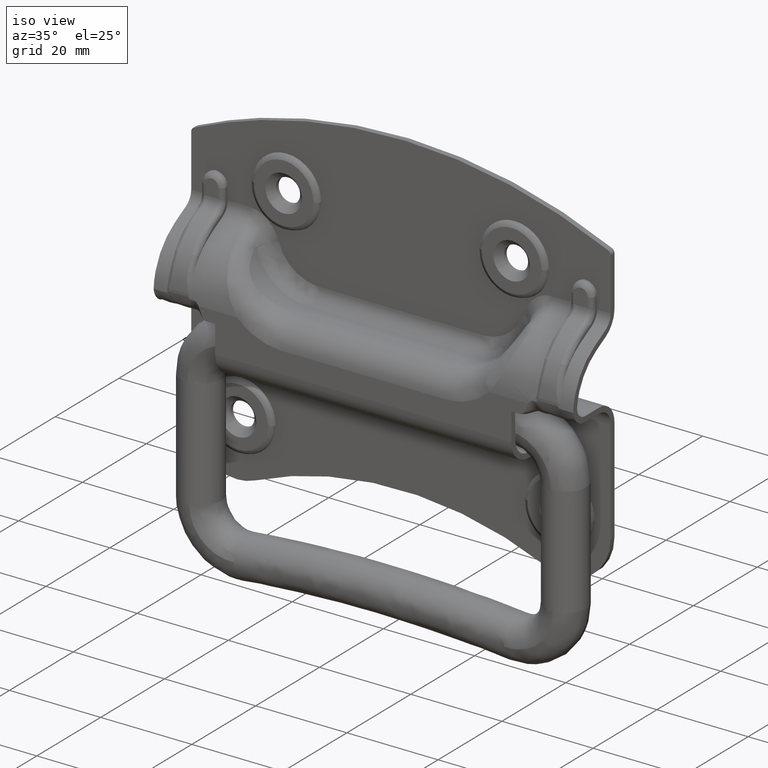
[diagram: clean part render]
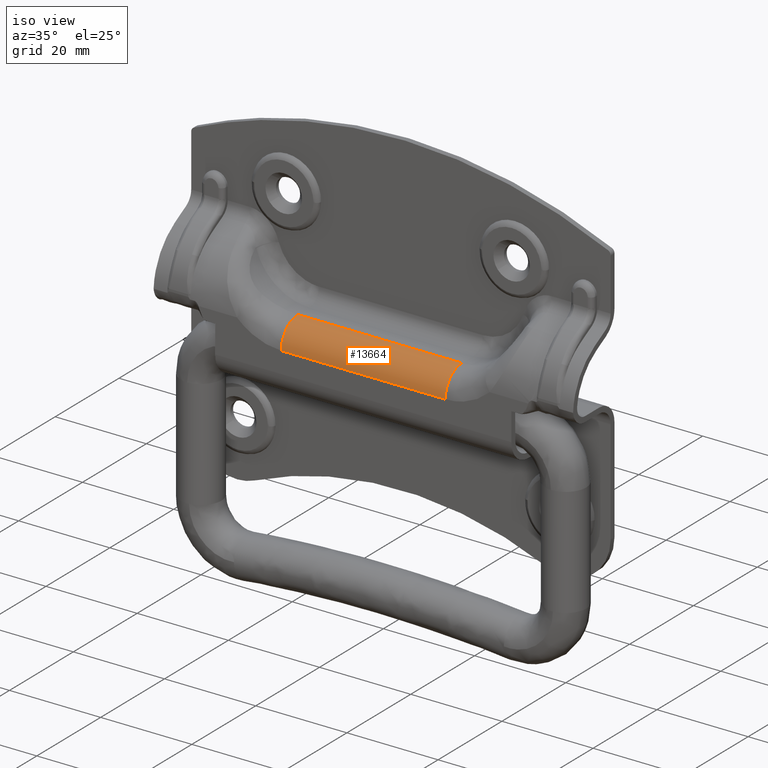
[diagram: same view with one face highlighted and labeled with its STEP entity id]
A machine part, iso view. The second image highlights one B-rep face of the part: STEP entity #13664.
In plain terms, the highlighted face is a freeform B-spline surface patch.
Its self-contained STEP definition (entity closure, byte-faithful):
#13571=CARTESIAN_POINT('',(-17.989417224256801,-6.300000000000100,3.300000000000000));
#13572=VERTEX_POINT('',#13571);
#13573=CARTESIAN_POINT('',(-17.989417224256801,-1.100000000000100,8.500000000000000));
#13574=VERTEX_POINT('',#13573);
#13575=CARTESIAN_POINT('',(-17.989417224256801,-6.300000000000100,3.300000000000000));
#13576=CARTESIAN_POINT('',(-17.989417224256830,-6.300023540345435,3.619061969754394));
#13577=CARTESIAN_POINT('',(-17.989417224256840,-6.235239076651224,4.321011775950144));
#13578=CARTESIAN_POINT('',(-17.989417224256819,-5.930873434834051,5.324544689789228));
#13579=CARTESIAN_POINT('',(-17.989417224256851,-5.446415882473841,6.204609059333916));
#13580=CARTESIAN_POINT('',(-17.989417224256940,-4.855240287108133,6.934039152631713));
#13581=CARTESIAN_POINT('',(-17.989417224256769,-4.115166369369407,7.580440151058687));
#13582=CARTESIAN_POINT('',(-17.989417224256989,-3.202742769484706,8.097344332654963));
#13583=CARTESIAN_POINT('',(-17.989417224256758,-2.163531626683575,8.426473193596587));
#13584=CARTESIAN_POINT('',(-17.989417224256901,-1.461605822204056,8.500052943462537));
#13585=CARTESIAN_POINT('',(-17.989417224256801,-1.100000000000100,8.500000000000000));
#13586=B_SPLINE_CURVE_WITH_KNOTS('',3,(#13575,#13576,#13577,#13578,#13579,#13580,#13581,#13582,#13583,#13584,#13585),.UNSPECIFIED.,.F.,.U.,(4,1,1,1,1,1,1,1,4),(0.000000207816578,0.957191866349964,2.105866928865705,3.126922538987524,3.956501181576887,4.913664046117958,6.062342043411299,7.083397471581851,8.168208867072346),.UNSPECIFIED.);
#13587=EDGE_CURVE('',#13572,#13574,#13586,.T.);
#13621=CARTESIAN_POINT('',(18.888813437020609,-0.963879868799158,8.498218089872896));
#13622=CARTESIAN_POINT('',(-18.911372990788792,-0.963879868799158,8.498218089872896));
#13623=CARTESIAN_POINT('',(18.888813437020616,-6.689921499122808,8.648159766906453));
#13624=CARTESIAN_POINT('',(-18.911372990788784,-6.689921499122808,8.648159766906453));
#13625=CARTESIAN_POINT('',(18.888813437020605,-6.287127258695690,2.934335123238267));
#13626=CARTESIAN_POINT('',(-18.911372990788788,-6.287127258695690,2.934335123238267));
#13634=(BOUNDED_SURFACE()B_SPLINE_SURFACE(1,2,((#13621,#13623,#13625),(#13622,#13624,#13626)),.UNSPECIFIED.,.F.,.F.,.U.)B_SPLINE_SURFACE_WITH_KNOTS((2,2),(3,3),(0.0,37.800186427809393),(0.0,9.209940769200813),.UNSPECIFIED.)GEOMETRIC_REPRESENTATION_ITEM()RATIONAL_B_SPLINE_SURFACE(((1.0,0.670944202479118,0.996392689507086),(1.0,0.670944202479118,0.996392689507086)))REPRESENTATION_ITEM('')SURFACE());
#13635=CARTESIAN_POINT('',(17.989344396501650,-6.300000000000100,3.300000000000000));
#13636=VERTEX_POINT('',#13635);
#13637=CARTESIAN_POINT('',(17.989344396501650,-1.100000000000100,8.500000000000000));
#13638=VERTEX_POINT('',#13637);
#13639=CARTESIAN_POINT('',(17.989344396501650,-6.300000000000100,3.300000000000000));
#13640=CARTESIAN_POINT('',(17.989344396501529,-6.300638664396213,3.959527872536128));
#13641=CARTESIAN_POINT('',(17.989344396501291,-6.136051664448085,4.809931257341503));
#13642=CARTESIAN_POINT('',(17.989344396501249,-5.632338346774924,5.891431088840783));
#13643=CARTESIAN_POINT('',(17.989344396501071,-5.038889149615672,6.780286262512811));
#13644=CARTESIAN_POINT('',(17.989344396501149,-4.092742256742405,7.627087166207413));
#13645=CARTESIAN_POINT('',(17.989344396501359,-2.716299238259469,8.319871094517428));
#13646=CARTESIAN_POINT('',(17.989344396501480,-1.716949851630260,8.500524657195586));
#13647=CARTESIAN_POINT('',(17.989344396501650,-1.100000000000100,8.500000000000000));
#13648=B_SPLINE_CURVE_WITH_KNOTS('',3,(#13639,#13640,#13641,#13642,#13643,#13644,#13645,#13646,#13647),.UNSPECIFIED.,.F.,.U.,(4,1,1,1,1,1,4),(0.000000194732488,1.978233307178002,2.552571677155958,3.573631660767587,5.168905328782504,6.317589273986898,8.168192150968745),.UNSPECIFIED.);
#13649=EDGE_CURVE('',#13636,#13638,#13648,.T.);
#13650=ORIENTED_EDGE('',*,*,#13649,.T.);
#13651=CARTESIAN_POINT('',(-17.989417224256801,-1.100000000000100,8.500000000000000));
#13652=CARTESIAN_POINT('',(17.989344396501650,-1.100000000000100,8.500000000000000));
#13653=QUASI_UNIFORM_CURVE('',1,(#13651,#13652),.UNSPECIFIED.,.F.,.U.);
#13654=EDGE_CURVE('',#13574,#13638,#13653,.T.);
#13655=ORIENTED_EDGE('',*,*,#13654,.F.);
#13656=ORIENTED_EDGE('',*,*,#13587,.F.);
#13657=CARTESIAN_POINT('',(17.989344396501650,-6.300000000000100,3.300000000000000));
#13658=CARTESIAN_POINT('',(-17.989417224256801,-6.300000000000100,3.300000000000000));
#13659=QUASI_UNIFORM_CURVE('',1,(#13657,#13658),.UNSPECIFIED.,.F.,.U.);
#13660=EDGE_CURVE('',#13636,#13572,#13659,.T.);
#13661=ORIENTED_EDGE('',*,*,#13660,.F.);
#13662=EDGE_LOOP('',(#13650,#13655,#13656,#13661));
#13663=FACE_OUTER_BOUND('',#13662,.T.);
#13664=ADVANCED_FACE('',(#13663),#13634,.T.);